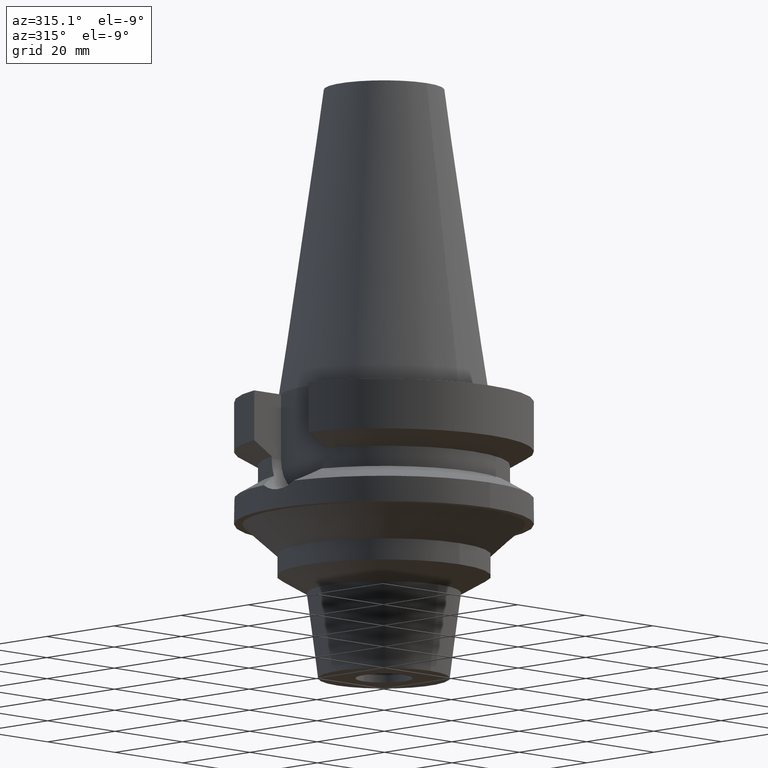
[diagram: clean part render]
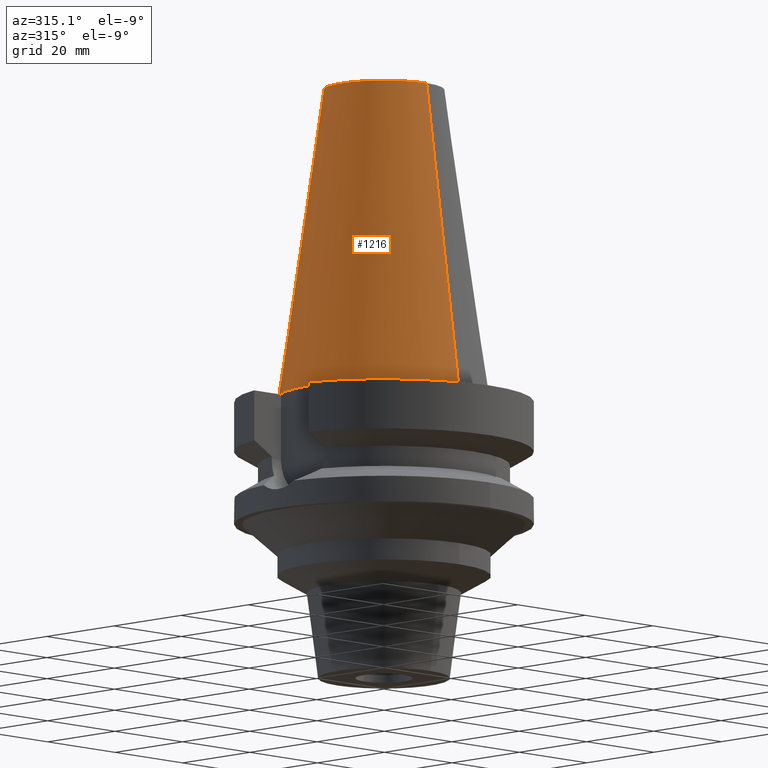
[diagram: same view with one face highlighted and labeled with its STEP entity id]
A machine part, auxiliary view. The second image highlights one B-rep face of the part: STEP entity #1216.
In plain terms, the highlighted conical surface has half-angle 8.297 deg.
Its self-contained STEP definition (entity closure, byte-faithful):
#17=CARTESIAN_POINT('',(0.E0,1.625106302469E-14,6.54E1));
#18=DIRECTION('',(0.E0,0.E0,-1.E0));
#19=DIRECTION('',(0.E0,-1.E0,0.E0));
#20=AXIS2_PLACEMENT_3D('',#17,#18,#19);
#50=DIRECTION('',(0.E0,-1.443043893540E-1,-9.895333461856E-1));
#51=VECTOR('',#50,6.609175956738E1);
#52=CARTESIAN_POINT('',(0.E0,-1.268766899430E1,6.54E1));
#53=LINE('',#52,#51);
#57=CARTESIAN_POINT('',(0.E0,1.625106302469E-14,2.842170943040E-14));
#58=DIRECTION('',(0.E0,0.E0,-1.E0));
#59=DIRECTION('',(0.E0,-1.E0,0.E0));
#60=AXIS2_PLACEMENT_3D('',#57,#58,#59);
#65=DIRECTION('',(0.E0,1.443043893540E-1,-9.895333461856E-1));
#66=VECTOR('',#65,6.609175956738E1);
#67=CARTESIAN_POINT('',(0.E0,1.268766899430E1,6.54E1));
#68=LINE('',#67,#66);
#1027=CARTESIAN_POINT('',(0.E0,-1.268766899430E1,6.54E1));
#1028=CARTESIAN_POINT('',(0.E0,1.268766899430E1,6.54E1));
#1029=VERTEX_POINT('',#1027);
#1030=VERTEX_POINT('',#1028);
#1172=CARTESIAN_POINT('',(0.E0,2.2225E1,4.973799150321E-14));
#1173=VERTEX_POINT('',#1172);
#1174=CARTESIAN_POINT('',(0.E0,-2.2225E1,4.973799150321E-14));
#1175=VERTEX_POINT('',#1174);
#1202=CARTESIAN_POINT('',(0.E0,1.625106302469E-14,3.27E1));
#1203=DIRECTION('',(0.E0,0.E0,-1.E0));
#1204=DIRECTION('',(0.E0,-1.E0,0.E0));
#1205=AXIS2_PLACEMENT_3D('',#1202,#1203,#1204);
#1206=CONICAL_SURFACE('',#1205,1.745633449715E1,8.297E0);
#1208=ORIENTED_EDGE('',*,*,#1207,.F.);
#1209=ORIENTED_EDGE('',*,*,#1189,.F.);
#1211=ORIENTED_EDGE('',*,*,#1210,.T.);
#1213=ORIENTED_EDGE('',*,*,#1212,.T.);
#1214=EDGE_LOOP('',(#1208,#1209,#1211,#1213));
#1215=FACE_OUTER_BOUND('',#1214,.F.);
#21=CIRCLE('',#20,1.268766899430E1);
#61=CIRCLE('',#60,2.2225E1);
#1189=EDGE_CURVE('',#1029,#1030,#21,.T.);
#1207=EDGE_CURVE('',#1030,#1173,#68,.T.);
#1210=EDGE_CURVE('',#1029,#1175,#53,.T.);
#1212=EDGE_CURVE('',#1175,#1173,#61,.T.);
#1216=ADVANCED_FACE('',(#1215),#1206,.T.);